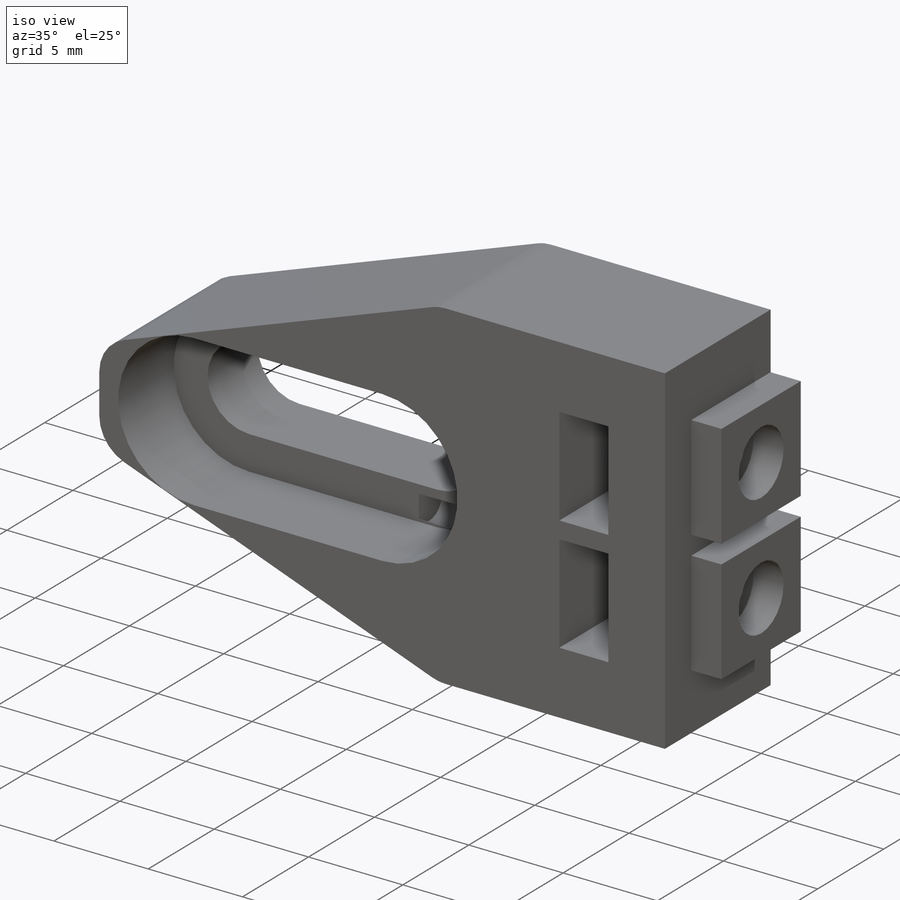
[diagram: iso view]
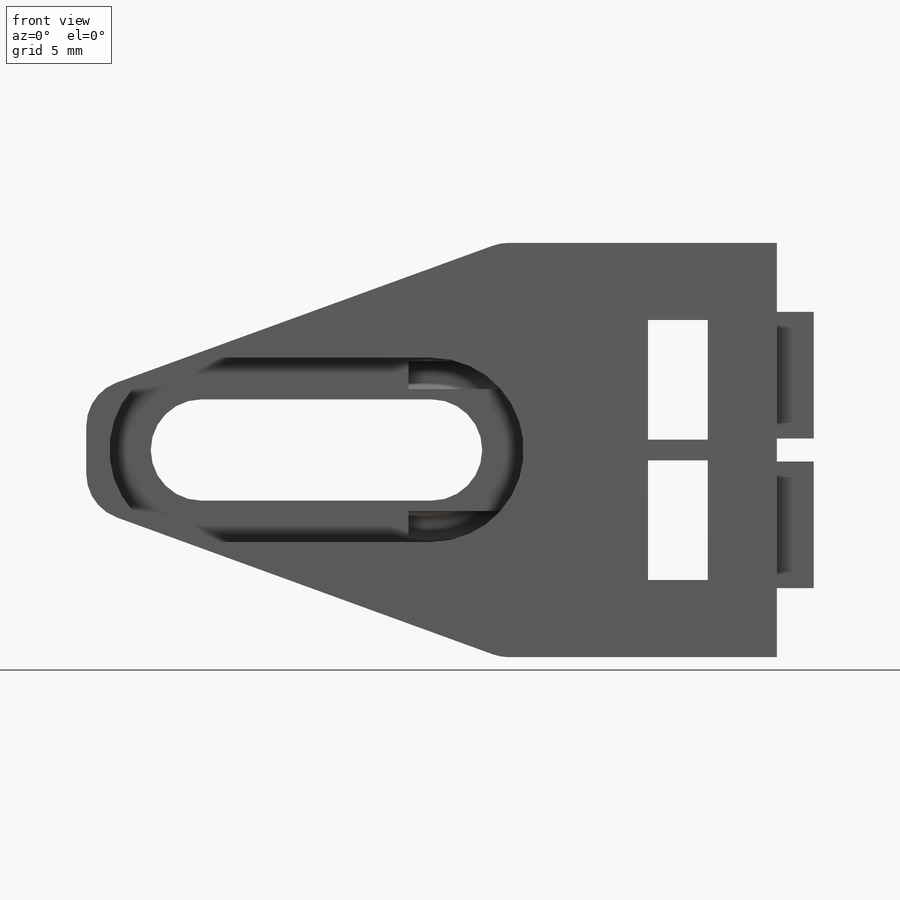
[diagram: front view]
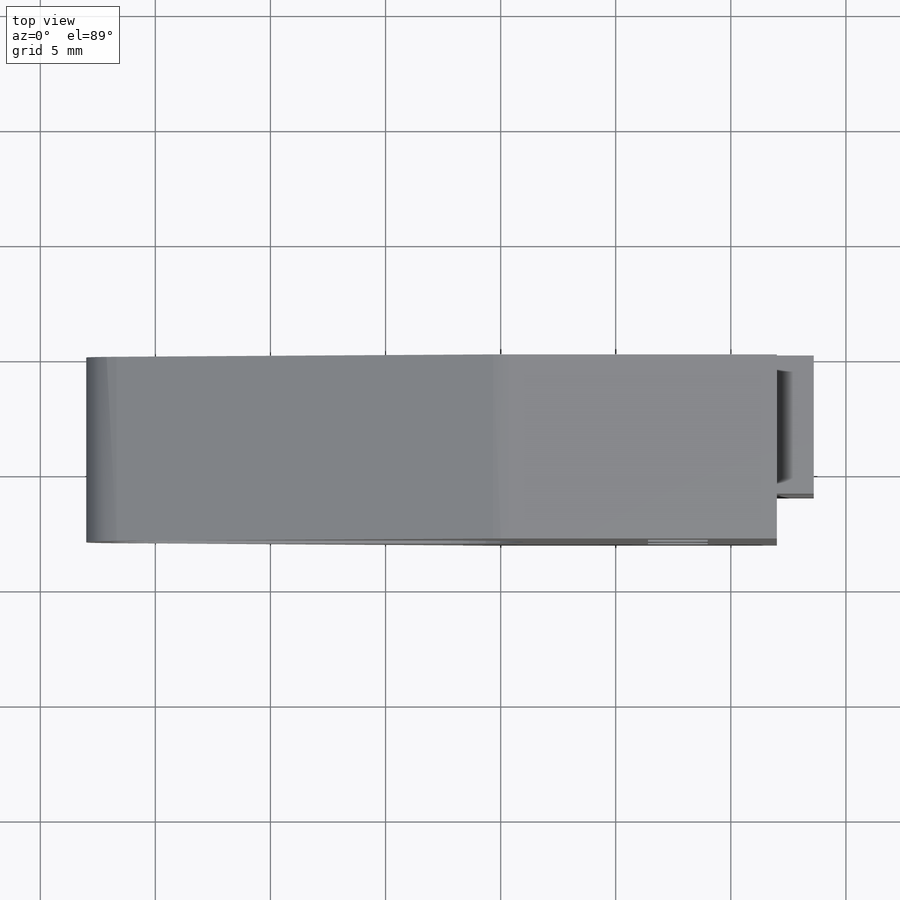
[diagram: top view]
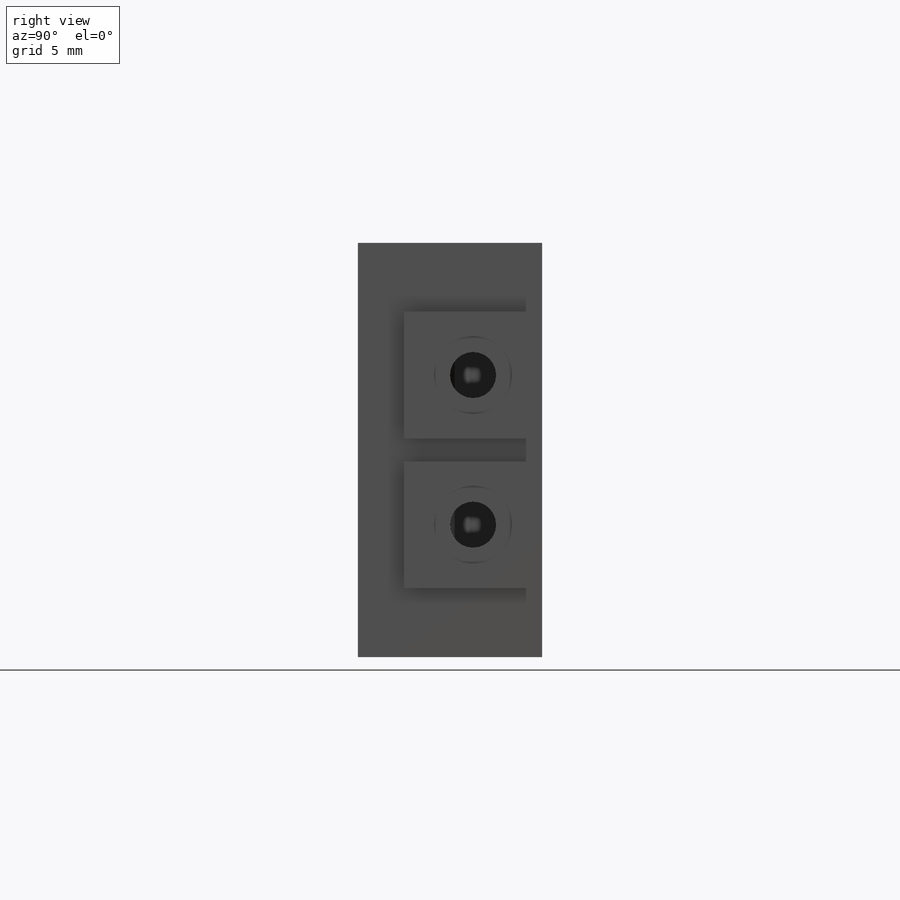
[diagram: right view]
SOLIDWORKS PART (.sldprt)
format: sldprt  version: not decoded by parser v0  size: 281,600 bytes
history: native  units: mm
features: sketch x6, cut_extrude x4, plane x3, extrude x2, material x1, chamfer x1, fillet x1 (+8 scaffold rows collapsed)
feature tree (26):
  scaffold x8  (default folders/planes/origin — collapsed)
  material  "Matériau <non spécifié>"
  plane  "Plan de face"
  plane  "Plan de dessus"
  plane  "Plan de droite"
  sketch  "Esquisse1"  dims[D1=18.0mm D2=30.0mm D3=9.0mm D4=8.0mm]
  extrude  "Boss.-Extru.1"  Depth=8mm
  sketch  "Esquisse2"  dims[c1.D1=4.4mm c1.D4=2.2mm c1.D6=4.4mm c1.D2=5.0mm c1.D3=9.0mm c1.D5=10.0mm c2.D6=5.0mm c2.D1=9.0mm]
  cut_extrude  "Enlèv. mat.-Extru.1"  [1 undecoded]
  sketch  "Esquisse3"  dims[c1.D1=8.0mm c1.D2=4.0mm c2.D1=4.0mm]
  cut_extrude  "Enlèv. mat.-Extru.2"  Depth=4.2mm
  chamfer  "Chanfrein1"  Distance=18mm Angle=20deg
  fillet  "Congé1"  Radius=2mm
  sketch  "Esquisse4"  dims[c1.D1=5.2mm c1.D2=5.2mm c1.D3=0.9mm c1.D4=3.0mm c1.D5=1.55mm c1.D6=2.6mm c1.D7=2.6mm c1.D8=3.0mm c2.D5=0.45mm]
  cut_extrude  "Enlèv. mat.-Extru.3"  [1 undecoded]
  sketch  "Esquisse5"  dims[c1.D1=2.0mm c1.D2=2.0mm c1.D5=3.4mm c1.D3=6.5mm c1.D4=3.0mm c2.D5=4.75mm c2.D6=3.0mm c3.D5=3.25mm]
  cut_extrude  "Enlèv. mat.-Extru.4"  Depth=16mm
  sketch  "Esquisse6"  dims[D1=5.5mm D2=6.0mm D3=2.75mm D4=5.5mm D5=2.75mm D6=6.0mm]
  extrude  "Boss.-Extru.2"  Depth=1.6mm
decode coverage: 12 of 14 modeling features carry decoded parameters
note: 2 parameter values undecoded
note: suppression state not decoded; provenance and decode notes live in map.json
